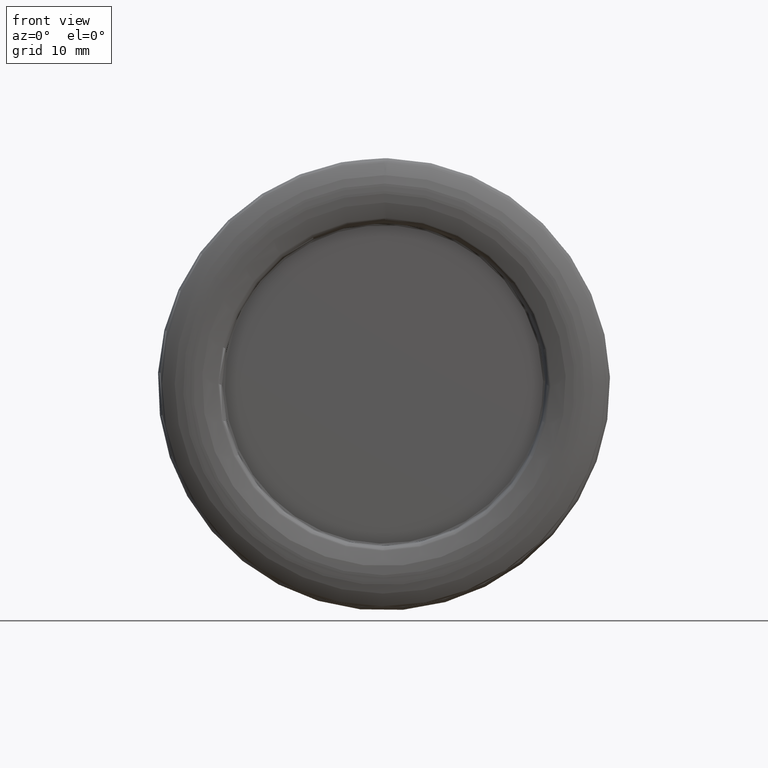
[diagram: clean part render]
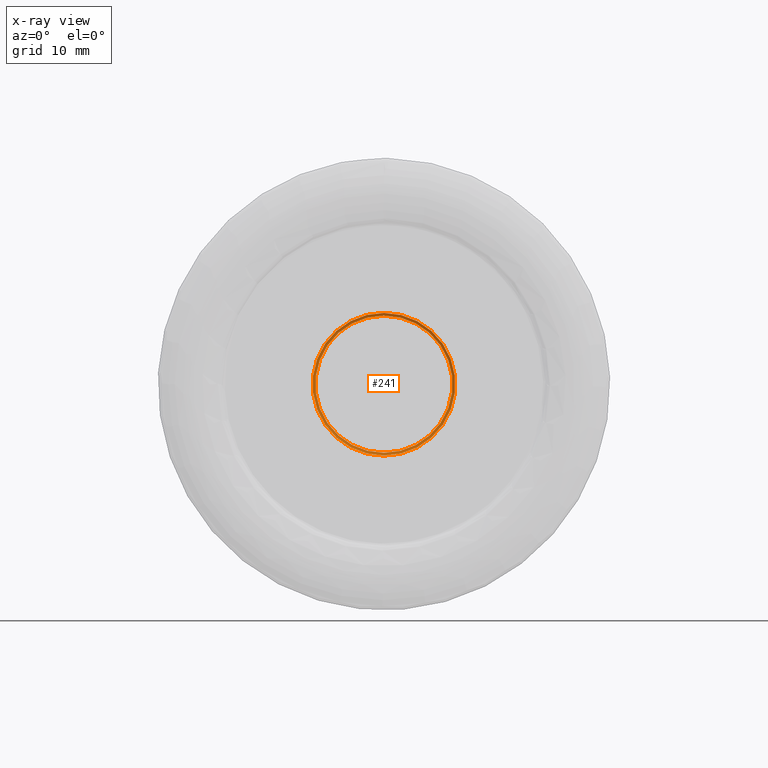
[diagram: x-ray — body ghosted, one internal face saturated and labeled with its STEP entity id]
A machine part, front view, then the same camera in x-ray: the body is ghosted and one INTERNAL B-rep face — a face not visible from any outside direction — is saturated and labeled: STEP entity #241.
In plain terms, the highlighted toroidal blend (fillet) surface has major radius 9.625 mm and minor (blend) radius 0.4 mm.
Its self-contained STEP definition (entity closure, byte-faithful):
#182=TOROIDAL_SURFACE('',#1162,9.625,0.4);
#241=ADVANCED_FACE('',(#429,#430),#182,.F.);
#429=FACE_BOUND('',#537,.T.);
#430=FACE_BOUND('',#538,.T.);
#537=EDGE_LOOP('',(#735));
#538=EDGE_LOOP('',(#736));
#735=ORIENTED_EDGE('',*,*,#1004,.F.);
#736=ORIENTED_EDGE('',*,*,#1002,.F.);
#895=VERTEX_POINT('',#1848);
#897=VERTEX_POINT('',#1853);
#1002=EDGE_CURVE('',#895,#895,#1071,.T.);
#1004=EDGE_CURVE('',#897,#897,#1073,.T.);
#1071=CIRCLE('',#1154,10.025);
#1073=CIRCLE('',#1157,9.625);
#1154=AXIS2_PLACEMENT_3D('',#1847,#1332,#1333);
#1157=AXIS2_PLACEMENT_3D('',#1852,#1338,#1339);
#1162=AXIS2_PLACEMENT_3D('',#1858,#1348,#1349);
#1332=DIRECTION('',(0.,1.,0.));
#1333=DIRECTION('',(0.,0.,1.));
#1338=DIRECTION('',(0.,-1.,0.));
#1339=DIRECTION('',(0.,0.,1.));
#1348=DIRECTION('',(0.,1.,0.));
#1349=DIRECTION('',(0.,0.,1.));
#1847=CARTESIAN_POINT('',(0.,34.05,0.));
#1848=CARTESIAN_POINT('',(0.,34.05,10.025));
#1852=CARTESIAN_POINT('',(0.,34.45,0.));
#1853=CARTESIAN_POINT('',(0.,34.45,9.625));
#1858=CARTESIAN_POINT('',(0.,34.05,0.));